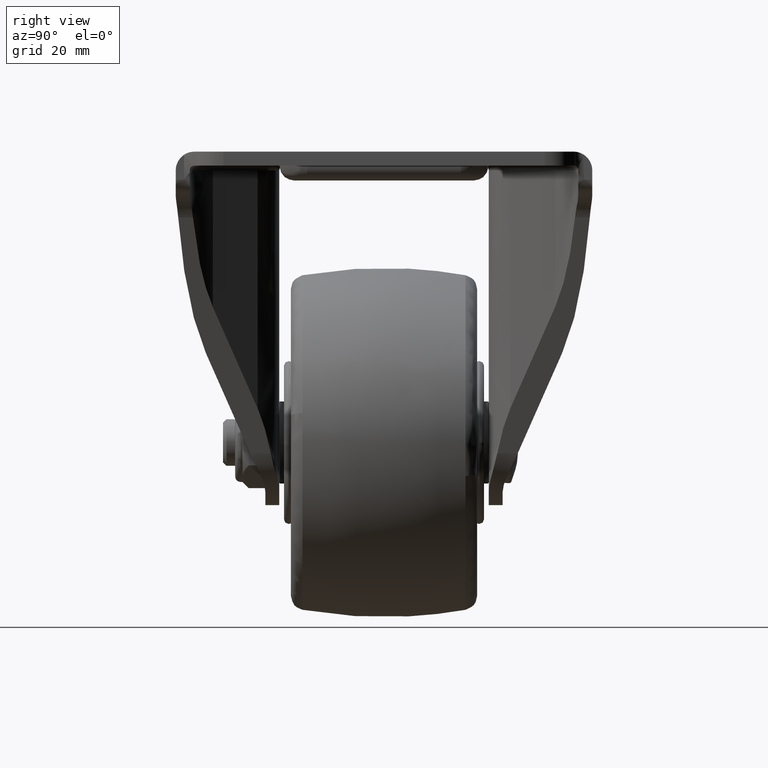
[diagram: clean part render]
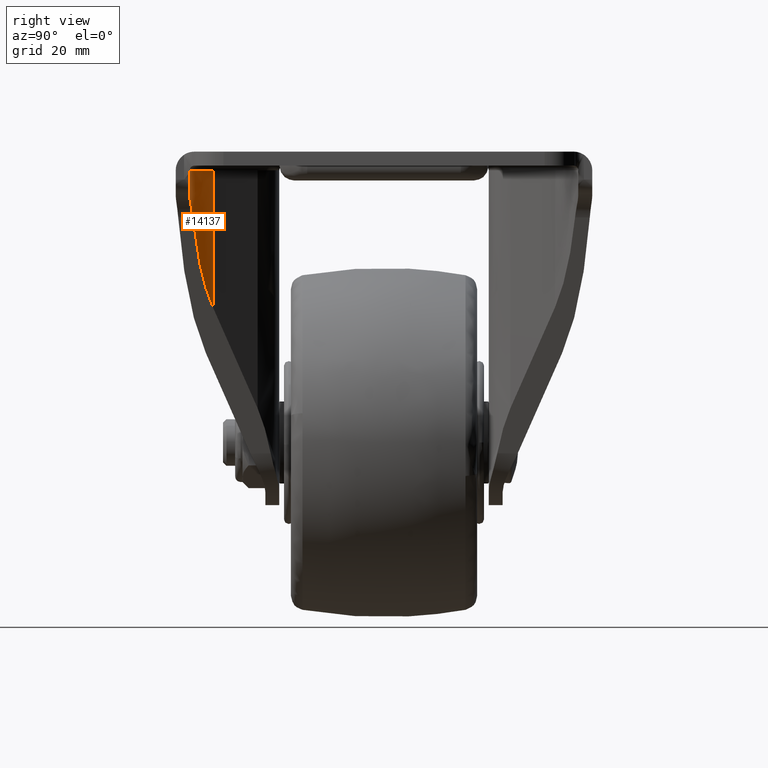
[diagram: same view with one face highlighted and labeled with its STEP entity id]
A machine part, right view. The second image highlights one B-rep face of the part: STEP entity #14137.
In plain terms, the highlighted face is a freeform B-spline surface patch.
Its self-contained STEP definition (entity closure, byte-faithful):
#12852=CARTESIAN_POINT('',(22.761161623709349,-36.760803341968149,29.062909119095949));
#12853=VERTEX_POINT('',#12852);
#12859=CARTESIAN_POINT('',(27.840997317506201,-41.059645722472951,48.373147637546900));
#12860=VERTEX_POINT('',#12859);
#12861=CARTESIAN_POINT('',(27.840997317506211,-41.059645722473107,48.373147637546900));
#12862=CARTESIAN_POINT('',(24.559342147551295,-39.786717177350191,35.898424460078985));
#12863=CARTESIAN_POINT('',(22.761161623709310,-36.760803341968241,29.062909119095959));
#12871=(BOUNDED_CURVE()B_SPLINE_CURVE(2,(#12861,#12862,#12863),.UNSPECIFIED.,.F.,.U.)CURVE()GEOMETRIC_REPRESENTATION_ITEM()QUASI_UNIFORM_CURVE()RATIONAL_B_SPLINE_CURVE((1.0,0.945297380927358,1.0))REPRESENTATION_ITEM(''));
#12872=EDGE_CURVE('',#12860,#12853,#12871,.T.);
#12912=CARTESIAN_POINT('',(31.529712999999798,-41.750000000000000,53.035832740946397));
#12913=VERTEX_POINT('',#12912);
#12914=CARTESIAN_POINT('',(27.840997317506201,-41.059645722472951,48.373147637546900));
#12915=CARTESIAN_POINT('',(27.906235163484379,-41.084950976092607,48.622480848125811));
#12916=CARTESIAN_POINT('',(27.983736506935941,-41.114258080353672,48.865670694279522));
#12917=CARTESIAN_POINT('',(28.162207458331210,-41.178545532017473,49.340588740908323));
#12918=CARTESIAN_POINT('',(28.263180457461161,-41.213528378142328,49.572315035888153));
#12919=CARTESIAN_POINT('',(28.488457676903529,-41.286774750043598,50.024723223602258));
#12920=CARTESIAN_POINT('',(28.612760189315448,-41.325042472964071,50.245405265992751));
#12921=CARTESIAN_POINT('',(28.817269485009259,-41.382988327957612,50.568177447018783));
#12922=CARTESIAN_POINT('',(28.888659002023239,-41.402442648163962,50.674658162243283));
#12923=CARTESIAN_POINT('',(29.036108684731449,-41.440790184203479,50.882722891628063));
#12924=CARTESIAN_POINT('',(29.112257266487589,-41.459712898675953,50.984480353395298));
#12925=CARTESIAN_POINT('',(29.347891894538058,-41.515224264062248,51.283093524931211));
#12926=CARTESIAN_POINT('',(29.514545068818549,-41.550560170733569,51.473310133148090));
#12927=CARTESIAN_POINT('',(29.867077933011728,-41.615175188354193,51.836397711632948));
#12928=CARTESIAN_POINT('',(30.052955674691180,-41.644462543553828,52.009269125252587));
#12929=CARTESIAN_POINT('',(30.346807629785712,-41.681657227237942,52.255356230376833));
#12930=CARTESIAN_POINT('',(30.447269955741749,-41.692930234580189,52.335176827553958));
#12931=CARTESIAN_POINT('',(30.653398097414659,-41.712814064459693,52.490299772561961));
#12932=CARTESIAN_POINT('',(30.758665681545949,-41.721380080951228,52.565287932245923));
#12933=CARTESIAN_POINT('',(31.079555169803680,-41.742316488588138,52.781452531155772));
#12934=CARTESIAN_POINT('',(31.300868281415038,-41.749999954848988,52.914324605196839));
#12935=CARTESIAN_POINT('',(31.529712999999798,-41.750000000000000,53.035832740946397));
#12936=B_SPLINE_CURVE_WITH_KNOTS('',3,(#12914,#12915,#12916,#12917,#12918,#12919,#12920,#12921,#12922,#12923,#12924,#12925,#12926,#12927,#12928,#12929,#12930,#12931,#12932,#12933,#12934,#12935),.UNSPECIFIED.,.F.,.U.,(4,2,2,2,2,2,2,2,2,2,4),(0.0,0.124999999999998,0.249999999999996,0.374999999999994,0.437499999999994,0.499999999999995,0.624999999999998,0.750000000000001,0.812500000000000,0.875000000000000,1.0),.UNSPECIFIED.);
#12937=EDGE_CURVE('',#12860,#12913,#12936,.T.);
#13498=CARTESIAN_POINT('',(31.529712999999798,-41.750000000000000,58.500002999999801));
#13499=VERTEX_POINT('',#13498);
#13500=CARTESIAN_POINT('',(31.529712999999798,-41.750000000000000,53.035832740946397));
#13501=CARTESIAN_POINT('',(31.529712999999798,-41.750000000000000,58.500002999999801));
#13502=QUASI_UNIFORM_CURVE('',1,(#13500,#13501),.UNSPECIFIED.,.F.,.U.);
#13503=EDGE_CURVE('',#12913,#13499,#13502,.T.);
#14100=CARTESIAN_POINT('',(31.925066095850180,-41.742335233932430,28.326981772073349));
#14101=CARTESIAN_POINT('',(31.925066095850180,-41.742335233932430,59.254328530697961));
#14102=CARTESIAN_POINT('',(25.515650944575782,-41.990950410514493,28.326981772073356));
#14103=CARTESIAN_POINT('',(25.515650944575782,-41.990950410514493,59.254328530697968));
#14104=CARTESIAN_POINT('',(22.514818122845917,-36.321963334903764,28.326981772073356));
#14105=CARTESIAN_POINT('',(22.514818122845917,-36.321963334903764,59.254328530697968));
#14113=(BOUNDED_SURFACE()B_SPLINE_SURFACE(1,2,((#14100,#14102,#14104),(#14101,#14103,#14105)),.UNSPECIFIED.,.F.,.F.,.U.)B_SPLINE_SURFACE_WITH_KNOTS((2,2),(3,3),(0.0,30.927346758624608),(0.0,11.762217614462550),.UNSPECIFIED.)GEOMETRIC_REPRESENTATION_ITEM()RATIONAL_B_SPLINE_SURFACE(((1.0,0.842976390931424,0.991618195679961),(1.0,0.842976390931424,0.991618195679961)))REPRESENTATION_ITEM('')SURFACE());
#14114=CARTESIAN_POINT('',(22.761161623709349,-36.760803341968149,58.500002999999801));
#14115=VERTEX_POINT('',#14114);
#14116=CARTESIAN_POINT('',(22.761161623709349,-36.760803341968149,29.062909119095949));
#14117=CARTESIAN_POINT('',(22.761161623709349,-36.760803341968149,58.500002999999801));
#14118=QUASI_UNIFORM_CURVE('',1,(#14116,#14117),.UNSPECIFIED.,.F.,.U.);
#14119=EDGE_CURVE('',#12853,#14115,#14118,.T.);
#14120=ORIENTED_EDGE('',*,*,#14119,.T.);
#14121=CARTESIAN_POINT('',(22.761161623709349,-36.760803341968149,58.500002999999801));
#14122=CARTESIAN_POINT('',(23.168161058836841,-37.446029605895390,58.500002999999907));
#14123=CARTESIAN_POINT('',(24.127160466366529,-38.698237495328023,58.500002999999708));
#14124=CARTESIAN_POINT('',(25.688065411251909,-39.978853617735517,58.500002999999992));
#14125=CARTESIAN_POINT('',(27.371299448345660,-40.918587177878287,58.500002999999602));
#14126=CARTESIAN_POINT('',(29.221302639359770,-41.571957622505067,58.500003000000277));
#14127=CARTESIAN_POINT('',(30.732728239212211,-41.750165924275230,58.500002999999062));
#14128=CARTESIAN_POINT('',(31.529712999999798,-41.750000000000000,58.500002999999801));
#14129=B_SPLINE_CURVE_WITH_KNOTS('',3,(#14121,#14122,#14123,#14124,#14125,#14126,#14127,#14128),.UNSPECIFIED.,.F.,.U.,(4,1,1,1,1,4),(0.000000045500913,2.390917566682751,4.699398252431471,6.018514715439499,8.162109449097013,10.553026970276679),.UNSPECIFIED.);
#14130=EDGE_CURVE('',#14115,#13499,#14129,.T.);
#14131=ORIENTED_EDGE('',*,*,#14130,.T.);
#14132=ORIENTED_EDGE('',*,*,#13503,.F.);
#14133=ORIENTED_EDGE('',*,*,#12937,.F.);
#14134=ORIENTED_EDGE('',*,*,#12872,.T.);
#14135=EDGE_LOOP('',(#14120,#14131,#14132,#14133,#14134));
#14136=FACE_OUTER_BOUND('',#14135,.T.);
#14137=ADVANCED_FACE('',(#14136),#14113,.F.);